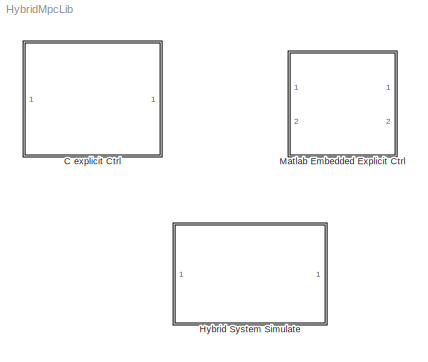
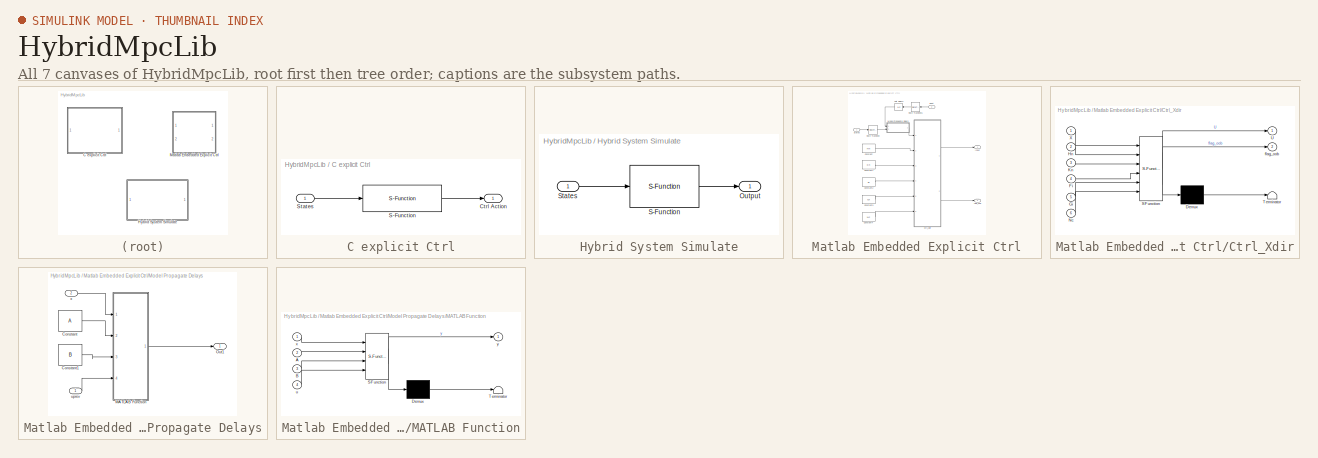
[diagram: thumbnail index - all 7 canvases of the model, root first then tree order]
MODEL HybridMpcLib
KIND library
BLOCK [SubSystem] C explicit Ctrl
  FunctionWithSeparateData = off
  MaskHideContents = off
  MinAlgLoopOccurrences = off
  Opaque = off
  Ports = [1, 1]
  PropExecContextOutsideSubsystem = off
  RTWSystemCode = Auto
  RequestExecContextInheritance = off
  SID = 2
BLOCK [Outport] C explicit Ctrl/Ctrl Action
  IconDisplay = Port number
  SID = 7
BLOCK [S-Function] C explicit Ctrl/S-Function
  EnableBusSupport = off
  FunctionName = mpt_getInput_sfunc
  Ports = [1, 1]
  SID = 6
BLOCK [Inport] C explicit Ctrl/States
  IconDisplay = Port number
  SID = 5
BLOCK [SubSystem] Hybrid System Simulate
  FunctionWithSeparateData = off
  MaskHideContents = off
  MinAlgLoopOccurrences = off
  Opaque = off
  Ports = [1, 1]
  PropExecContextOutsideSubsystem = off
  RTWSystemCode = Auto
  RequestExecContextInheritance = off
  SID = 29
BLOCK [Outport] Hybrid System Simulate/Output
  IconDisplay = Port number
  SID = 31
BLOCK [S-Function] Hybrid System Simulate/S-Function
  EnableBusSupport = off
  FunctionName = SimModelMLD
  Parameters = model,x_init,Ts
  Ports = [1, 1]
  SID = 32
BLOCK [Inport] Hybrid System Simulate/States
  IconDisplay = Port number
  SID = 30
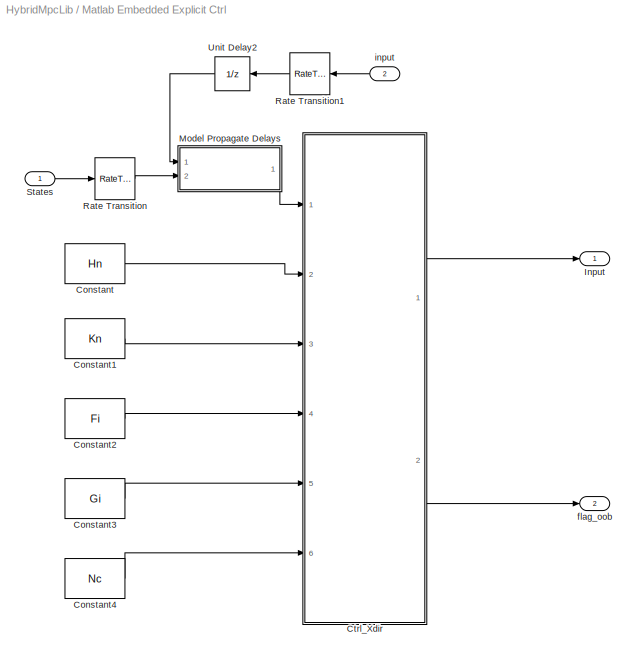
BLOCK [SubSystem] Matlab Embedded Explicit Ctrl
  FunctionWithSeparateData = off
  MaskHideContents = off
  MinAlgLoopOccurrences = off
  Opaque = off
  Ports = [2, 2]
  PropExecContextOutsideSubsystem = off
  RTWSystemCode = Auto
  RequestExecContextInheritance = off
  SID = 8
BLOCK [Constant] Matlab Embedded Explicit Ctrl/Constant
  SID = 11
  Value = Hn
BLOCK [Constant] Matlab Embedded Explicit Ctrl/Constant1
  SID = 12
  Value = Kn
BLOCK [Constant] Matlab Embedded Explicit Ctrl/Constant2
  SID = 13
  Value = Fi
BLOCK [Constant] Matlab Embedded Explicit Ctrl/Constant3
  SID = 14
  Value = Gi
BLOCK [Constant] Matlab Embedded Explicit Ctrl/Constant4
  SID = 15
  Value = Nc
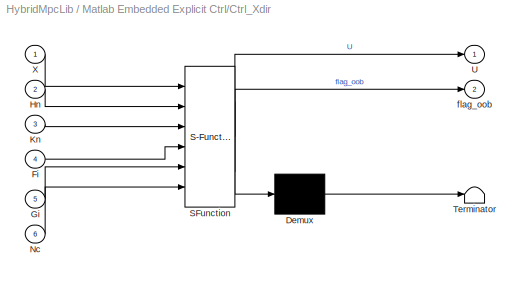
BLOCK [SubSystem] Matlab Embedded Explicit Ctrl/Ctrl_Xdir
  ErrorFcn = Stateflow.Translate.translate
  FunctionWithSeparateData = off
  MaskHideContents = off
  MinAlgLoopOccurrences = off
  Opaque = off
  PermitHierarchicalResolution = ExplicitOnly
  Ports = [6, 2]
  PropExecContextOutsideSubsystem = off
  RTWSystemCode = Auto
  RequestExecContextInheritance = off
  SFBlockType = MATLAB Function
  SID = 16
  TreatAsAtomicUnit = on
BLOCK [Demux] Matlab Embedded Explicit Ctrl/Ctrl_Xdir/ Demux 
  Outputs = 1
  Ports = [1, 1]
  SID = 16::19
BLOCK [S-Function] Matlab Embedded Explicit Ctrl/Ctrl_Xdir/ SFunction 
  EnableBusSupport = on
  FunctionName = sf_sfun
  PortCounts = [6 3]
  Ports = [6, 3]
  SID = 16::18
  Tag = Stateflow S-Function HybridMpcLib 1
BLOCK [Terminator] Matlab Embedded Explicit Ctrl/Ctrl_Xdir/ Terminator 
  SID = 16::20
BLOCK [Inport] Matlab Embedded Explicit Ctrl/Ctrl_Xdir/Fi
  IconDisplay = Port number
  Port = 4
  SID = 16::27
BLOCK [Inport] Matlab Embedded Explicit Ctrl/Ctrl_Xdir/Gi
  IconDisplay = Port number
  Port = 5
  SID = 16::28
BLOCK [Inport] Matlab Embedded Explicit Ctrl/Ctrl_Xdir/Hn
  IconDisplay = Port number
  Port = 2
  SID = 16::25
BLOCK [Inport] Matlab Embedded Explicit Ctrl/Ctrl_Xdir/Kn
  IconDisplay = Port number
  Port = 3
  SID = 16::26
BLOCK [Inport] Matlab Embedded Explicit Ctrl/Ctrl_Xdir/Nc
  IconDisplay = Port number
  Port = 6
  SID = 16::29
BLOCK [Outport] Matlab Embedded Explicit Ctrl/Ctrl_Xdir/U
  IconDisplay = Port number
  SID = 16::5
BLOCK [Inport] Matlab Embedded Explicit Ctrl/Ctrl_Xdir/X
  IconDisplay = Port number
  SID = 16::1
BLOCK [Outport] Matlab Embedded Explicit Ctrl/Ctrl_Xdir/flag_oob
  IconDisplay = Port number
  Port = 2
  SID = 16::31
BLOCK [Outport] Matlab Embedded Explicit Ctrl/Input
  IconDisplay = Port number
  SID = 27
BLOCK [SubSystem] Matlab Embedded Explicit Ctrl/Model Propagate Delays
  FunctionWithSeparateData = off
  MaskHideContents = off
  MinAlgLoopOccurrences = off
  Opaque = off
  Ports = [2, 1]
  PropExecContextOutsideSubsystem = off
  RTWSystemCode = Auto
  RequestExecContextInheritance = off
  SID = 17
BLOCK [Constant] Matlab Embedded Explicit Ctrl/Model Propagate Delays/Constant
  SID = 20
  Value = A
BLOCK [Constant] Matlab Embedded Explicit Ctrl/Model Propagate Delays/Constant1
  SID = 21
  Value = B
BLOCK [SubSystem] Matlab Embedded Explicit Ctrl/Model Propagate Delays/MATLAB Function
  ErrorFcn = Stateflow.Translate.translate
  FunctionWithSeparateData = off
  MaskDescription = Embedded MATLAB block
  MaskDisplay = bgColor = Simulink.Root.ColorString2Rgb(get_param(gcbh, 'BackgroundColor')); image(imread('private/eml_membrane_16.png','png','BackgroundColor',bgColor(1:3)),'center'); disp([10 10 'fcn']);
  MaskHideContents = off
  MaskIconFrame = on
  MaskIconOpaque = off
  MaskIconRotate = none
  MaskIconUnits = normalized
  MaskPortRotate = default
  MaskSelfModifiable = on
  MaskType = Stateflow
  MinAlgLoopOccurrences = off
  Opaque = off
  PermitHierarchicalResolution = ExplicitOnly
  Ports = [4, 1]
  PropExecContextOutsideSubsystem = off
  RTWSystemCode = Auto
  RequestExecContextInheritance = off
  SFBlockType = MATLAB Function
  SID = 22
  TreatAsAtomicUnit = on
BLOCK [Demux] Matlab Embedded Explicit Ctrl/Model Propagate Delays/MATLAB Function/ Demux 
  Outputs = 1
  Ports = [1, 1]
  SID = 22::15
BLOCK [S-Function] Matlab Embedded Explicit Ctrl/Model Propagate Delays/MATLAB Function/ SFunction 
  EnableBusSupport = on
  FunctionName = sf_sfun
  PortCounts = [4 2]
  Ports = [4, 2]
  SID = 22::14
  Tag = Stateflow S-Function HybridMpcLib 7
BLOCK [Terminator] Matlab Embedded Explicit Ctrl/Model Propagate Delays/MATLAB Function/ Terminator 
  SID = 22::17
BLOCK [Inport] Matlab Embedded Explicit Ctrl/Model Propagate Delays/MATLAB Function/A
  IconDisplay = Port number
  Port = 2
  SID = 22::18
BLOCK [Inport] Matlab Embedded Explicit Ctrl/Model Propagate Delays/MATLAB Function/B
  IconDisplay = Port number
  Port = 3
  SID = 22::19
BLOCK [Inport] Matlab Embedded Explicit Ctrl/Model Propagate Delays/MATLAB Function/u
  IconDisplay = Port number
  Port = 4
  SID = 22::20
BLOCK [Inport] Matlab Embedded Explicit Ctrl/Model Propagate Delays/MATLAB Function/x
  IconDisplay = Port number
  SID = 22::1
BLOCK [Outport] Matlab Embedded Explicit Ctrl/Model Propagate Delays/MATLAB Function/y
  IconDisplay = Port number
  SID = 22::5
BLOCK [Outport] Matlab Embedded Explicit Ctrl/Model Propagate Delays/Out1
  IconDisplay = Port number
  SID = 23
BLOCK [Inport] Matlab Embedded Explicit Ctrl/Model Propagate Delays/uprev
  IconDisplay = Port number
  SID = 18
BLOCK [Inport] Matlab Embedded Explicit Ctrl/Model Propagate Delays/x
  IconDisplay = Port number
  Port = 2
  SID = 19
BLOCK [RateTransition] Matlab Embedded Explicit Ctrl/Rate Transition
  OutPortSampleTime = TsCtrl
  SID = 24
BLOCK [RateTransition] Matlab Embedded Explicit Ctrl/Rate Transition1
  OutPortSampleTime = TsCtrl
  SID = 25
BLOCK [Inport] Matlab Embedded Explicit Ctrl/States
  IconDisplay = Port number
  SID = 9
BLOCK [UnitDelay] Matlab Embedded Explicit Ctrl/Unit Delay2
  InputProcessing = Elements as channels (sample based)
  SID = 26
  SampleTime = -1
BLOCK [Outport] Matlab Embedded Explicit Ctrl/flag_oob
  IconDisplay = Port number
  Port = 2
  SID = 28
BLOCK [Inport] Matlab Embedded Explicit Ctrl/input
  IconDisplay = Port number
  Port = 2
  SID = 10
LINE C explicit Ctrl/S-Function:1 -> C explicit Ctrl/Ctrl Action:1
LINE C explicit Ctrl/States:1 -> C explicit Ctrl/S-Function:1
LINE Hybrid System Simulate/S-Function:1 -> Hybrid System Simulate/Output:1
LINE Hybrid System Simulate/States:1 -> Hybrid System Simulate/S-Function:1
LINE Matlab Embedded Explicit Ctrl/Constant1:1 -> Matlab Embedded Explicit Ctrl/Ctrl_Xdir:3
LINE Matlab Embedded Explicit Ctrl/Constant2:1 -> Matlab Embedded Explicit Ctrl/Ctrl_Xdir:4
LINE Matlab Embedded Explicit Ctrl/Constant3:1 -> Matlab Embedded Explicit Ctrl/Ctrl_Xdir:5
LINE Matlab Embedded Explicit Ctrl/Constant4:1 -> Matlab Embedded Explicit Ctrl/Ctrl_Xdir:6
LINE Matlab Embedded Explicit Ctrl/Constant:1 -> Matlab Embedded Explicit Ctrl/Ctrl_Xdir:2
LINE Matlab Embedded Explicit Ctrl/Ctrl_Xdir/ Demux :1 -> Matlab Embedded Explicit Ctrl/Ctrl_Xdir/ Terminator :1
LINE Matlab Embedded Explicit Ctrl/Ctrl_Xdir/ SFunction :1 -> Matlab Embedded Explicit Ctrl/Ctrl_Xdir/ Demux :1
LINE Matlab Embedded Explicit Ctrl/Ctrl_Xdir/ SFunction :2 -> Matlab Embedded Explicit Ctrl/Ctrl_Xdir/U:1
LINE Matlab Embedded Explicit Ctrl/Ctrl_Xdir/ SFunction :3 -> Matlab Embedded Explicit Ctrl/Ctrl_Xdir/flag_oob:1
LINE Matlab Embedded Explicit Ctrl/Ctrl_Xdir/Fi:1 -> Matlab Embedded Explicit Ctrl/Ctrl_Xdir/ SFunction :4
LINE Matlab Embedded Explicit Ctrl/Ctrl_Xdir/Gi:1 -> Matlab Embedded Explicit Ctrl/Ctrl_Xdir/ SFunction :5
LINE Matlab Embedded Explicit Ctrl/Ctrl_Xdir/Hn:1 -> Matlab Embedded Explicit Ctrl/Ctrl_Xdir/ SFunction :2
LINE Matlab Embedded Explicit Ctrl/Ctrl_Xdir/Kn:1 -> Matlab Embedded Explicit Ctrl/Ctrl_Xdir/ SFunction :3
LINE Matlab Embedded Explicit Ctrl/Ctrl_Xdir/Nc:1 -> Matlab Embedded Explicit Ctrl/Ctrl_Xdir/ SFunction :6
LINE Matlab Embedded Explicit Ctrl/Ctrl_Xdir/X:1 -> Matlab Embedded Explicit Ctrl/Ctrl_Xdir/ SFunction :1
LINE Matlab Embedded Explicit Ctrl/Ctrl_Xdir:1 -> Matlab Embedded Explicit Ctrl/Input:1
LINE Matlab Embedded Explicit Ctrl/Ctrl_Xdir:2 -> Matlab Embedded Explicit Ctrl/flag_oob:1
LINE Matlab Embedded Explicit Ctrl/Model Propagate Delays/Constant1:1 -> Matlab Embedded Explicit Ctrl/Model Propagate Delays/MATLAB Function:3
LINE Matlab Embedded Explicit Ctrl/Model Propagate Delays/Constant:1 -> Matlab Embedded Explicit Ctrl/Model Propagate Delays/MATLAB Function:2
LINE Matlab Embedded Explicit Ctrl/Model Propagate Delays/MATLAB Function/ Demux :1 -> Matlab Embedded Explicit Ctrl/Model Propagate Delays/MATLAB Function/ Terminator :1
LINE Matlab Embedded Explicit Ctrl/Model Propagate Delays/MATLAB Function/ SFunction :1 -> Matlab Embedded Explicit Ctrl/Model Propagate Delays/MATLAB Function/ Demux :1
LINE Matlab Embedded Explicit Ctrl/Model Propagate Delays/MATLAB Function/ SFunction :2 -> Matlab Embedded Explicit Ctrl/Model Propagate Delays/MATLAB Function/y:1
LINE Matlab Embedded Explicit Ctrl/Model Propagate Delays/MATLAB Function/A:1 -> Matlab Embedded Explicit Ctrl/Model Propagate Delays/MATLAB Function/ SFunction :2
LINE Matlab Embedded Explicit Ctrl/Model Propagate Delays/MATLAB Function/B:1 -> Matlab Embedded Explicit Ctrl/Model Propagate Delays/MATLAB Function/ SFunction :3
LINE Matlab Embedded Explicit Ctrl/Model Propagate Delays/MATLAB Function/u:1 -> Matlab Embedded Explicit Ctrl/Model Propagate Delays/MATLAB Function/ SFunction :4
LINE Matlab Embedded Explicit Ctrl/Model Propagate Delays/MATLAB Function/x:1 -> Matlab Embedded Explicit Ctrl/Model Propagate Delays/MATLAB Function/ SFunction :1
LINE Matlab Embedded Explicit Ctrl/Model Propagate Delays/MATLAB Function:1 -> Matlab Embedded Explicit Ctrl/Model Propagate Delays/Out1:1
LINE Matlab Embedded Explicit Ctrl/Model Propagate Delays/uprev:1 -> Matlab Embedded Explicit Ctrl/Model Propagate Delays/MATLAB Function:4
LINE Matlab Embedded Explicit Ctrl/Model Propagate Delays/x:1 -> Matlab Embedded Explicit Ctrl/Model Propagate Delays/MATLAB Function:1
LINE Matlab Embedded Explicit Ctrl/Model Propagate Delays:1 -> Matlab Embedded Explicit Ctrl/Ctrl_Xdir:1
LINE Matlab Embedded Explicit Ctrl/Rate Transition1:1 -> Matlab Embedded Explicit Ctrl/Unit Delay2:1
LINE Matlab Embedded Explicit Ctrl/Rate Transition:1 -> Matlab Embedded Explicit Ctrl/Model Propagate Delays:2
LINE Matlab Embedded Explicit Ctrl/States:1 -> Matlab Embedded Explicit Ctrl/Rate Transition:1
LINE Matlab Embedded Explicit Ctrl/Unit Delay2:1 -> Matlab Embedded Explicit Ctrl/Model Propagate Delays:1
LINE Matlab Embedded Explicit Ctrl/input:1 -> Matlab Embedded Explicit Ctrl/Rate Transition1:1
CHART Matlab Embedded Explicit Ctrl/Ctrl_Xdir states=1 transitions=1
  STATE_LABEL 'eML_blk_kernel()'
CHART Matlab Embedded Explicit Ctrl/Model Propagate Delays/MATLAB Function states=1 transitions=1
  STATE_LABEL 'eML_blk_kernel()'
